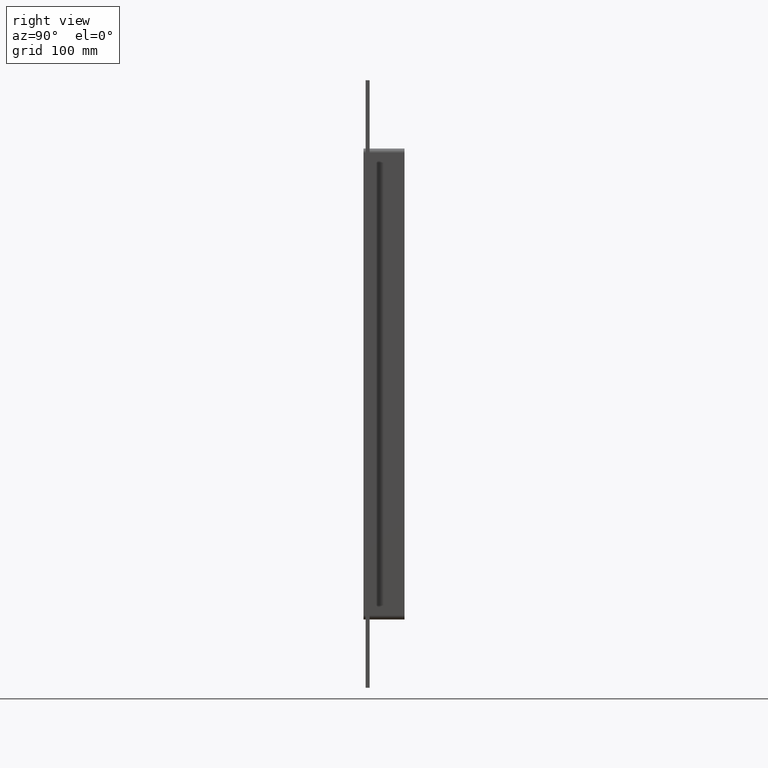
[diagram: clean part render]
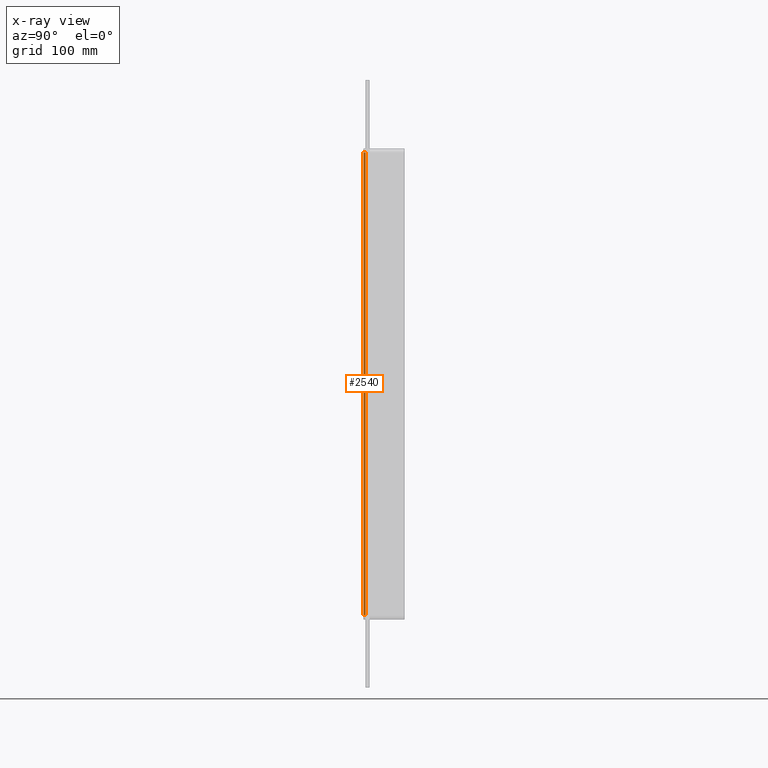
[diagram: x-ray — body ghosted, one internal face saturated and labeled with its STEP entity id]
A machine part, right view, then the same camera in x-ray: the body is ghosted and one INTERNAL B-rep face — a face not visible from any outside direction — is saturated and labeled: STEP entity #2540.
In plain terms, the highlighted planar face has unit normal (-1, 0, 0).
Its self-contained STEP definition (entity closure, byte-faithful):
#1531=CARTESIAN_POINT('',(-196.75000000000009,-3.0,339.0));
#1532=VERTEX_POINT('',#1531);
#1540=CARTESIAN_POINT('',(-196.75000000000009,-3.0,-339.00000000000006));
#1541=VERTEX_POINT('',#1540);
#1542=CARTESIAN_POINT('',(-196.75000000000009,-3.0,338.99999999999994));
#1543=DIRECTION('',(0.0,0.0,-1.0));
#1544=VECTOR('',#1543,678.0);
#1545=LINE('',#1542,#1544);
#1546=EDGE_CURVE('',#1532,#1541,#1545,.T.);
#2193=CARTESIAN_POINT('',(-196.75000000000009,0.0,-339.00000000000006));
#2194=VERTEX_POINT('',#2193);
#2204=CARTESIAN_POINT('',(-196.75000000000009,0.0,339.00000000000006));
#2205=VERTEX_POINT('',#2204);
#2206=CARTESIAN_POINT('',(-196.75000000000009,0.0,339.0));
#2207=DIRECTION('',(0.0,0.0,-1.0));
#2208=VECTOR('',#2207,678.0);
#2209=LINE('',#2206,#2208);
#2210=EDGE_CURVE('',#2205,#2194,#2209,.T.);
#2479=CARTESIAN_POINT('',(-196.75000000000009,0.0,339.00000000000006));
#2480=DIRECTION('',(0.0,-1.0,0.0));
#2481=VECTOR('',#2480,3.0);
#2482=LINE('',#2479,#2481);
#2483=EDGE_CURVE('',#2205,#1532,#2482,.T.);
#2524=CARTESIAN_POINT('',(-196.75000000000009,0.0,-345.00000000000006));
#2525=DIRECTION('',(-1.0,0.0,0.0));
#2526=DIRECTION('',(0.0,0.0,1.0));
#2527=AXIS2_PLACEMENT_3D('',#2524,#2525,#2526);
#2528=PLANE('',#2527);
#2529=ORIENTED_EDGE('',*,*,#2210,.T.);
#2530=CARTESIAN_POINT('',(-196.75000000000009,-3.0,-339.00000000000006));
#2531=DIRECTION('',(0.0,1.0,0.0));
#2532=VECTOR('',#2531,3.0);
#2533=LINE('',#2530,#2532);
#2534=EDGE_CURVE('',#1541,#2194,#2533,.T.);
#2535=ORIENTED_EDGE('',*,*,#2534,.F.);
#2536=ORIENTED_EDGE('',*,*,#1546,.F.);
#2537=ORIENTED_EDGE('',*,*,#2483,.F.);
#2538=EDGE_LOOP('',(#2529,#2535,#2536,#2537));
#2539=FACE_OUTER_BOUND('',#2538,.T.);
#2540=ADVANCED_FACE('',(#2539),#2528,.T.);